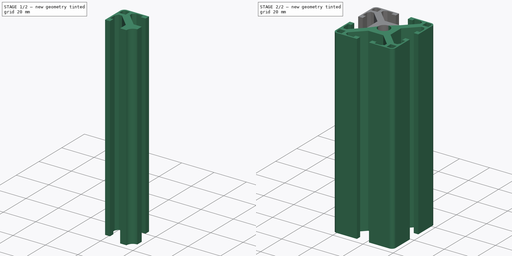
[diagram: build sequence overview — one tinted view per stage of 2, left to right]
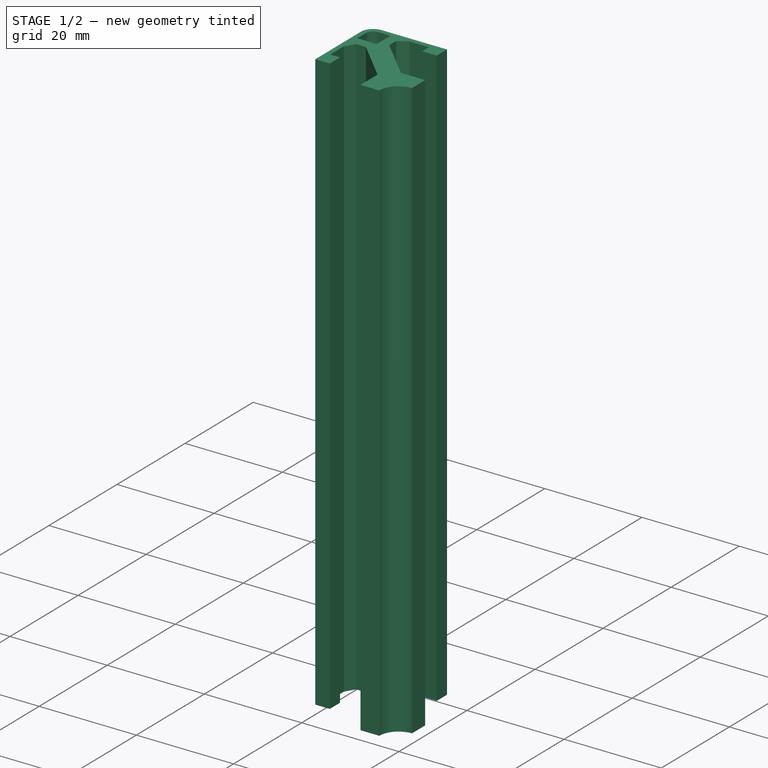
[diagram: stage 1 of 2 — iso view after this stage's code; geometry added in this stage tinted green]
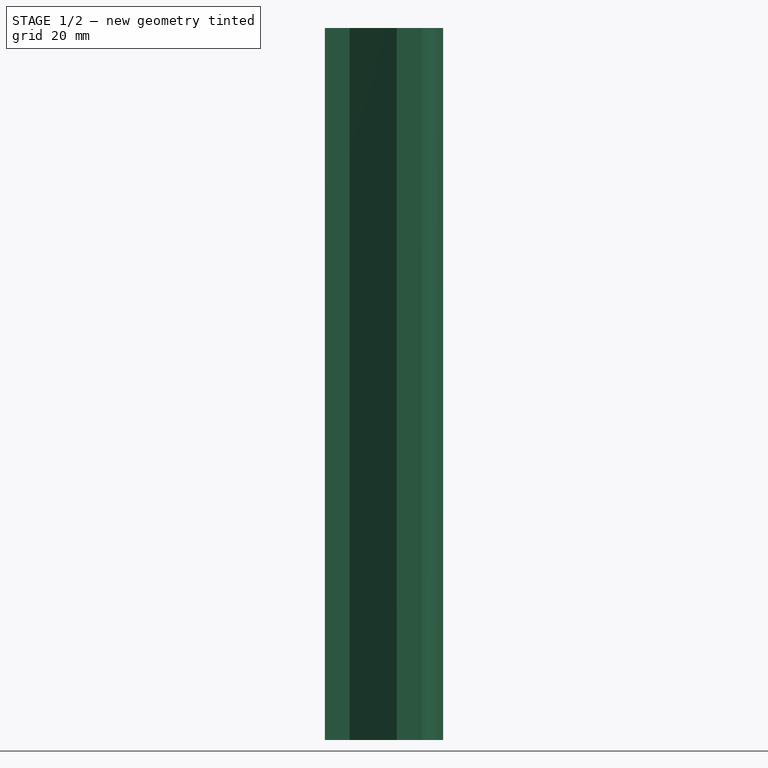
[diagram: stage 1 of 2 — front view after this stage's code; geometry added in this stage tinted green]
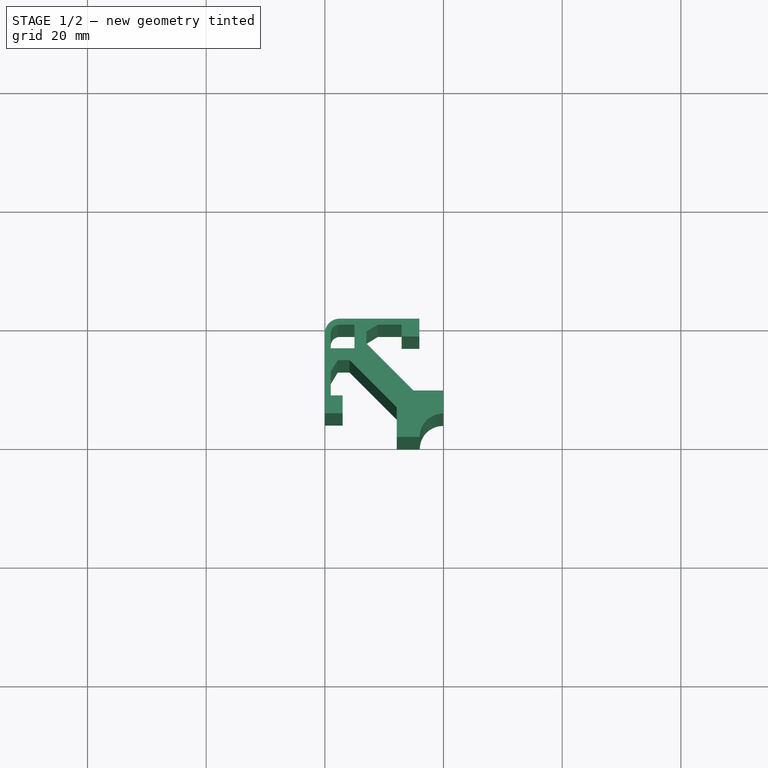
[diagram: stage 1 of 2 — top view after this stage's code; geometry added in this stage tinted green]
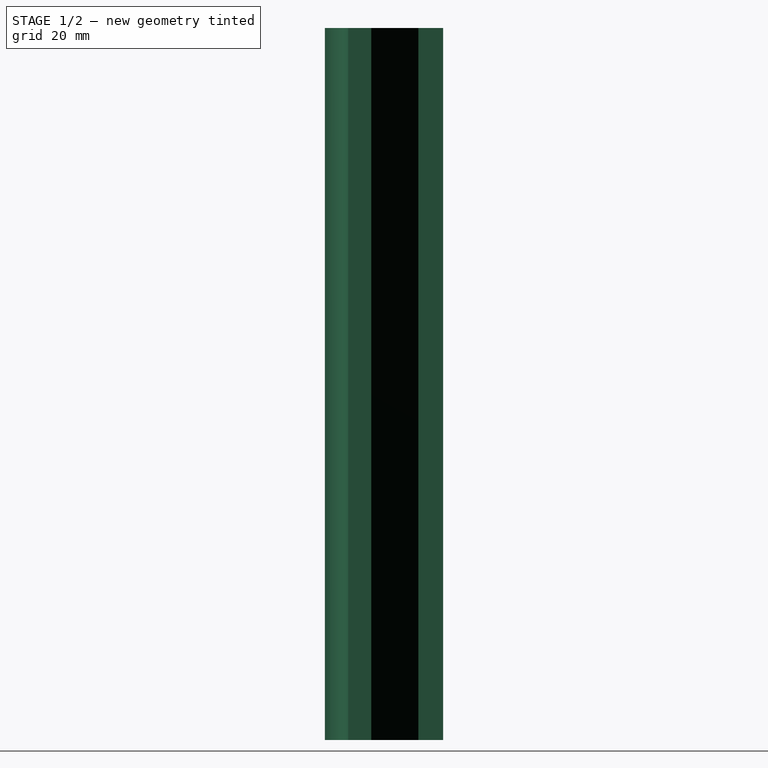
[diagram: stage 1 of 2 — right view after this stage's code; geometry added in this stage tinted green]
FCSTD DOCUMENT  (FreeCAD 1.0R39319 (Git))
Label: Profile120
License: All rights reserved
LicenseURL: https://en.wikipedia.org/wiki/All_rights_reserved
objects: PartDesign::Mirrored×3, Sketcher::SketchObject×1, PartDesign::Pad×1, PartDesign::Body×1
note: 12 computed .brp shape members not serialized (recipe doc carries the construction recipe); baked Part::Feature solids carry a one-line shape summary decoded from their .brp

FEATURE [Sketcher::SketchObject] Sketch
  ArcFitTolerance = 1e-06
  AttachmentSupport = -> [XY_Plane]
  FullyConstrained = false
  MakeInternals = false
  MapMode = 5
  sketch-geometry (20):
    g0: ArcOfCircle CenterX=0 CenterY=0 CenterZ=0 NormalX=0 NormalY=0 NormalZ=1 AngleXU=0 Radius=4 StartAngle=2.36708 EndAngle=3.14159
    g1: LineSegment StartX=-4 StartY=5e-16 StartZ=0 EndX=-7.89 EndY=0 EndZ=0
    g2: LineSegment StartX=-7.89 StartY=0 StartZ=0 EndX=-7.89 EndY=5 EndZ=0
    g3: LineSegment StartX=-7.89 StartY=5 StartZ=0 EndX=-15.8284 EndY=12.9384 EndZ=0
    g4: LineSegment StartX=-2.85905 StartY=2.79747 StartZ=0 EndX=-15 EndY=14.9384 EndZ=0
    g5: LineSegment StartX=-15 StartY=14.9384 StartZ=0 EndX=-19 EndY=14.9384 EndZ=0
    g6: LineSegment StartX=-15.8284 StartY=12.9384 StartZ=0 EndX=-17.8284 EndY=12.9384 EndZ=0
    g7: LineSegment StartX=-17.8284 StartY=12.9384 StartZ=0 EndX=-19 EndY=11 EndZ=0
    g8: LineSegment StartX=-19 StartY=11 StartZ=0 EndX=-19 EndY=7 EndZ=0
    g9: LineSegment StartX=-19 StartY=7 StartZ=0 EndX=-17 EndY=7 EndZ=0
    g10: LineSegment StartX=-17 StartY=7 StartZ=0 EndX=-17 EndY=4 EndZ=0
    g11: LineSegment StartX=-17 StartY=4 StartZ=0 EndX=-20 EndY=4 EndZ=0
    g12: LineSegment StartX=-20 StartY=4 StartZ=0 EndX=-20 EndY=17.4384 EndZ=0
    g13: LineSegment [constr] StartX=-23.5902 StartY=23.5287 StartZ=0 EndX=-15 EndY=14.9384 EndZ=0
    g14: LineSegment StartX=-19 StartY=14.9384 StartZ=0 EndX=-19 EndY=17.4384 EndZ=0
    g15: ArcOfCircle CenterX=-17.5 CenterY=17.4384 CenterZ=0 NormalX=0 NormalY=0 NormalZ=1 AngleXU=0 Radius=1.5 StartAngle=2.35619 EndAngle=3.14159
    g16: ArcOfCircle CenterX=-17.5 CenterY=17.4384 CenterZ=0 NormalX=0 NormalY=0 NormalZ=1 AngleXU=0 Radius=2.5 StartAngle=2.35619 EndAngle=3.14159
    g17: LineSegment StartX=-19.2678 StartY=19.2062 StartZ=0 EndX=-18.5607 EndY=18.4991 EndZ=0
    g18: LineSegment StartX=-19 StartY=14.9384 StartZ=0 EndX=-19 EndY=17.4384 EndZ=0
    g19: LineSegment StartX=-19 StartY=14.9384 StartZ=0 EndX=-19 EndY=17.4384 EndZ=0
  constraints (56):
    c: Coincident(g0,g-1)
    c: PointOnObject(g0,g-1)
    c: Radius(g0) = 4
    c: Coincident(g1,g0)
    c: PointOnObject(g1,g-1)
    c: Coincident(g2,g1)
    c: Perpendicular(g-1,g2)
    c: DistanceY(g2,g2) = 5
    c: Coincident(g3,g2)
    c: Coincident(g4,g0)
    c: Parallel(g4,g3)
    c: Coincident(g5,g4)
    c: Horizontal(g5)
    c: Coincident(g6,g3)
    c: Horizontal(g6)
    c: Distance(g5,g6) = 2
    c: DistanceX(g6,g6) = 2
    c: Distance(g5,g5) = 4
    c: Coincident(g7,g6)
    c: Coincident(g8,g7)
    c: Vertical(g8)
    c: Coincident(g9,g8)
    c: Horizontal(g9)
    c: Coincident(g10,g9)
    c: Vertical(g10)
    c: Coincident(g11,g10)
    c: Horizontal(g11)
    c: DistanceY(g8,g8) = 4
    c: Distance(g9,g9) = 2
    c: DistanceY(g10,g10) = 3
    c: DistanceX(g11,g11) = 3
    c: Distance(g-1,g11) = 4
    c: Coincident(g12,g11)
    c: Vertical(g12)
    c: Distance(g-2,g12) = 20
    c: Distance(g12,g2) = 12.11
    c: Coincident(g13,g4)
    c: Coincident(g14,g5)
    c: Perpendicular(g14,g5)
    c: PointOnObject(g15,g13)
    c: PointOnObject(g15,g13)
    c: Coincident(g16,g15)
    c: PointOnObject(g16,g13)
    c: Coincident(g17,g16)
    c: Coincident(g17,g15)
    c: Coincident(g18,g5)
    c: Coincident(g18,g14)
    c: Coincident(g19,g5)
    c: Coincident(g19,g14)
    c: Radius(g15) = 1.5
    c: Radius(g16) = 2.5
    c: Tangent(g15,g14) = 1.5708
    c: Tangent(g12,g16) = 1.5708
    c: Parallel(g13,g4)
    c: Distance(g4,g3) = 2
    c: Angle(g4,g-1) = 0.785398
FEATURE [PartDesign::Pad] Pad
  Direction = (0,0,1)
  Length = 120
  Length2 = 10
  Midplane = true
  Profile = -> Sketch
  ReferenceAxis = -> Sketch [N_Axis]
  Refine = true
  Suppressed = false
  Type = 0
FEATURE [PartDesign::Mirrored] Mirrored
  BaseFeature = -> Pad
  MirrorPlane = -> Pad [Face1]
  Originals = -> [Pad]
  Refine = true
  Suppressed = false
  TransformMode = 0
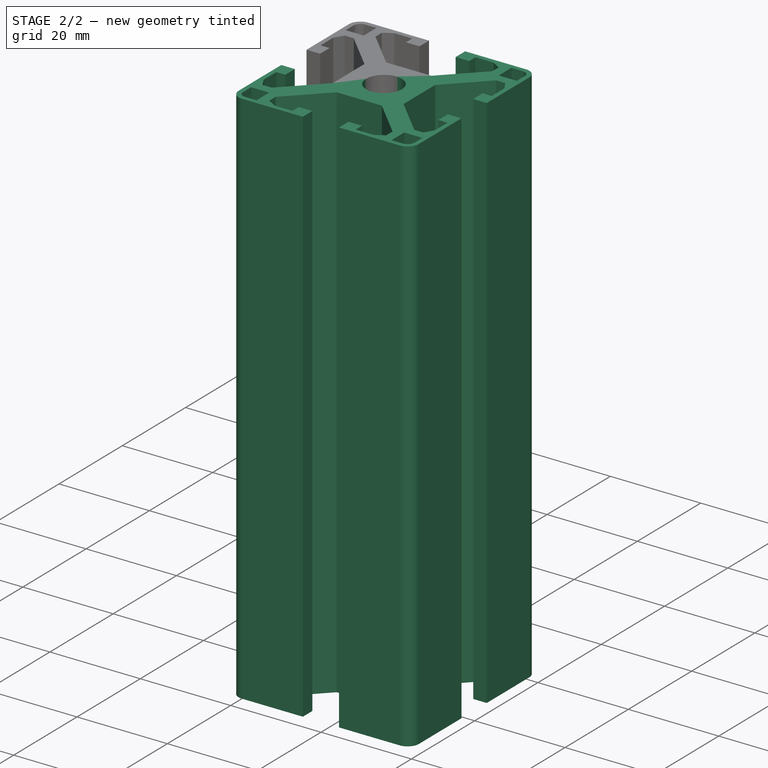
[diagram: stage 2 of 2 — iso view after this stage's code; geometry added in this stage tinted green]
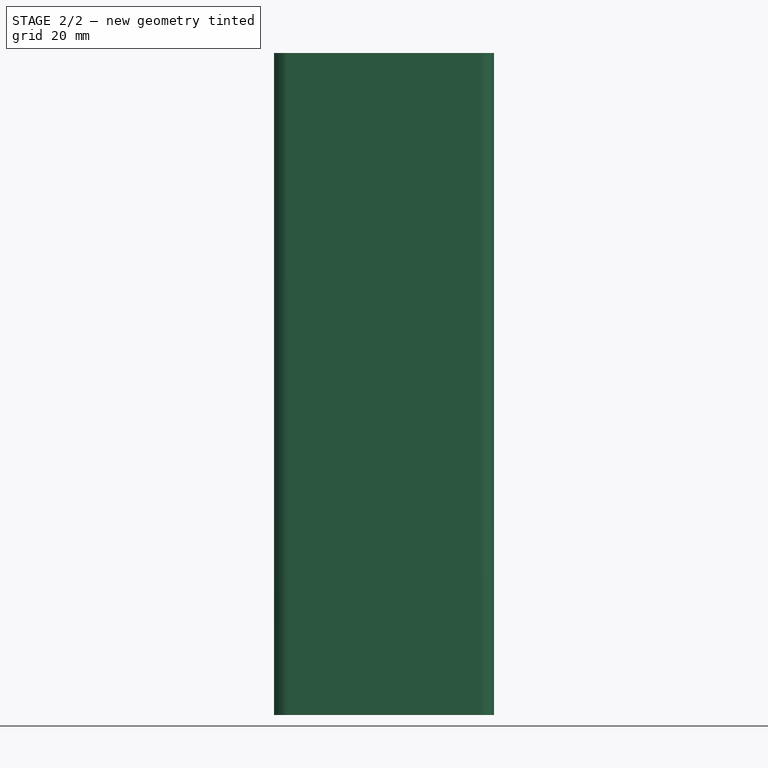
[diagram: stage 2 of 2 — front view after this stage's code; geometry added in this stage tinted green]
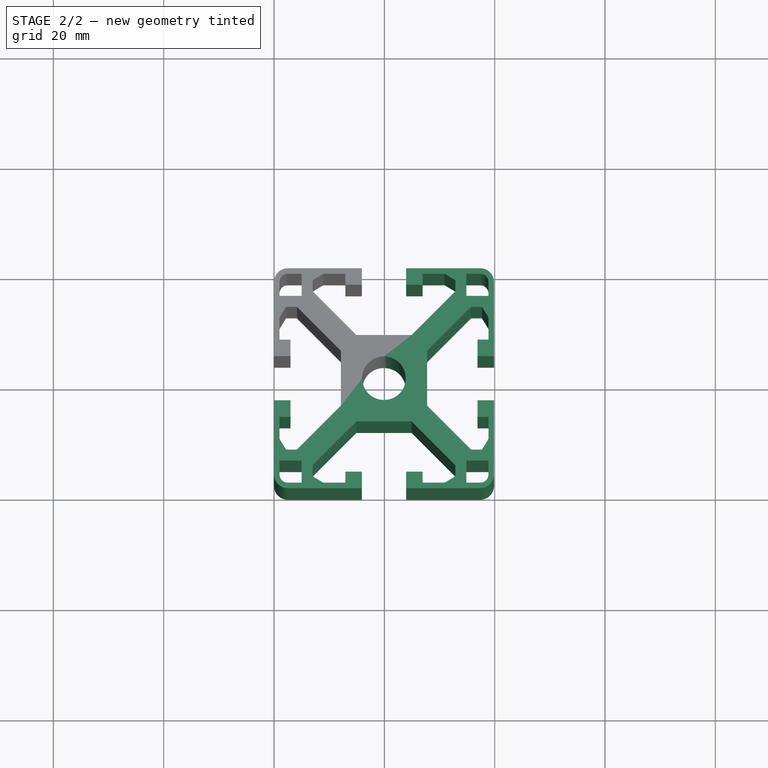
[diagram: stage 2 of 2 — top view after this stage's code; geometry added in this stage tinted green]
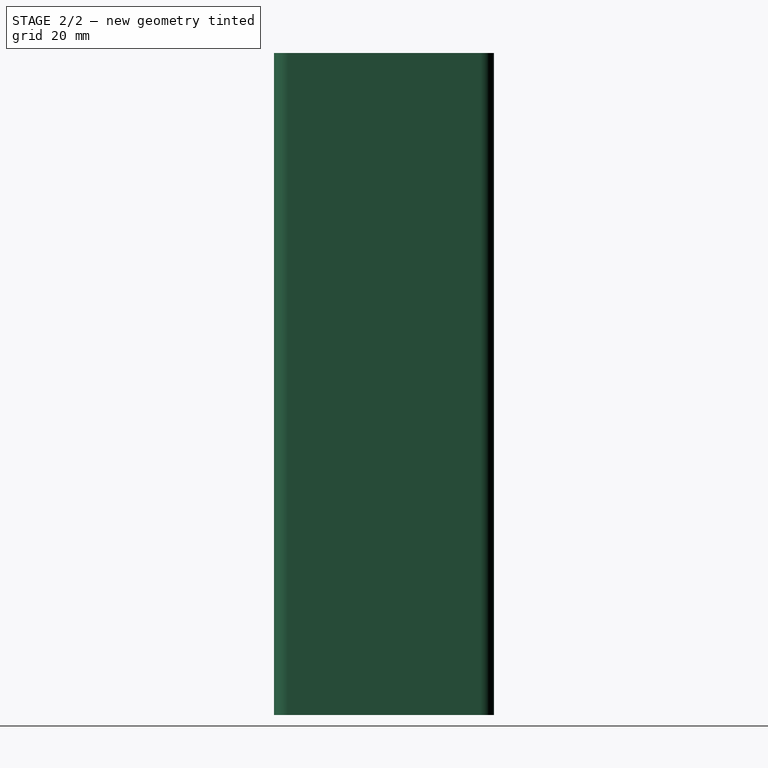
[diagram: stage 2 of 2 — right view after this stage's code; geometry added in this stage tinted green]
FEATURE [PartDesign::Mirrored] Mirrored001
  BaseFeature = -> Mirrored
  MirrorPlane = -> Mirrored [Face22]
  Originals = -> [Mirrored]
  Refine = true
  Suppressed = false
  TransformMode = 1
FEATURE [PartDesign::Mirrored] Mirrored002
  BaseFeature = -> Mirrored001
  MirrorPlane = -> Mirrored001 [Face2]
  Originals = -> [Mirrored001]
  Refine = true
  Suppressed = false
  TransformMode = 1
FEATURE [PartDesign::Body] Body  label="Corps"
  AllowCompound = false
  Group = -> [Sketch,Pad,Mirrored,Mirrored001,Mirrored002]
  Origin = -> Origin
  Tip = -> Mirrored002
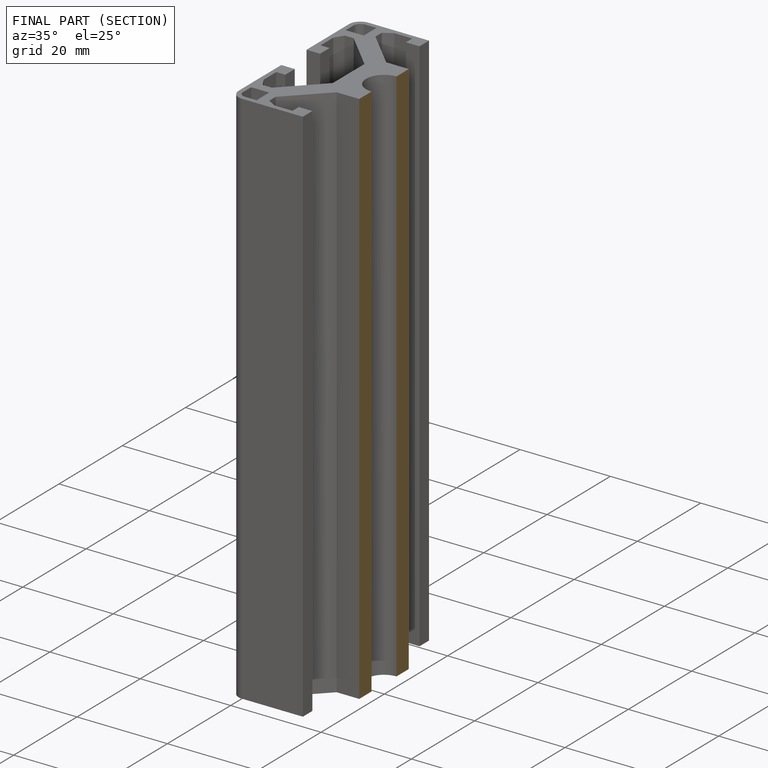
[diagram: finished part — half-section view (interior)]
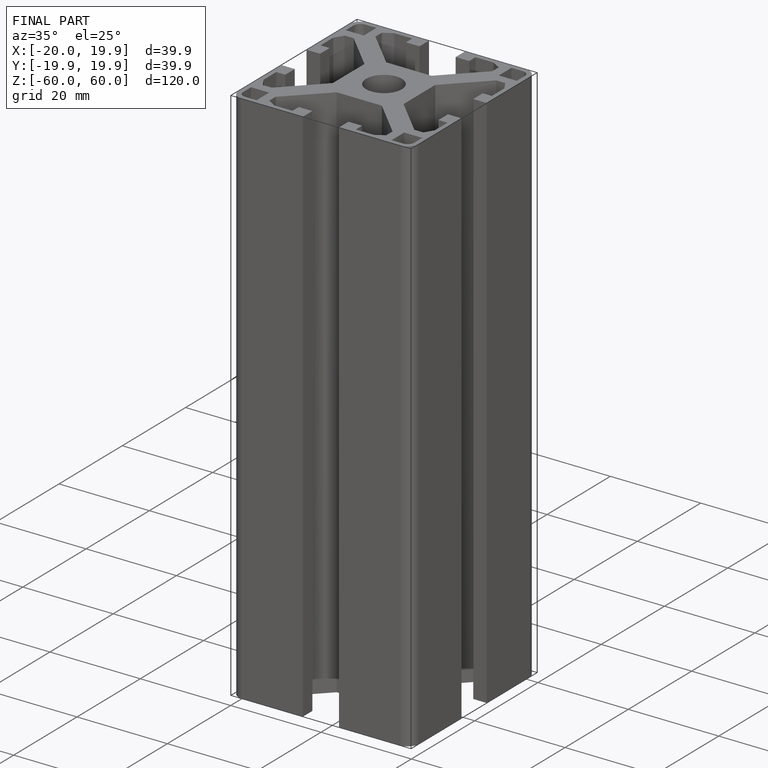
[diagram: finished part — iso view with bounding-box wireframe]
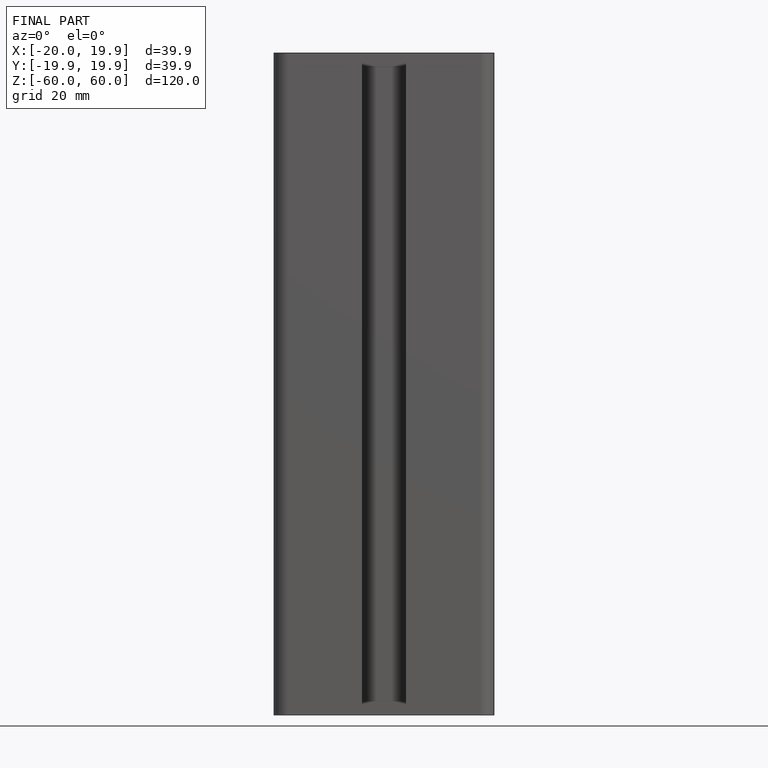
[diagram: finished part — front view with bounding-box wireframe]
